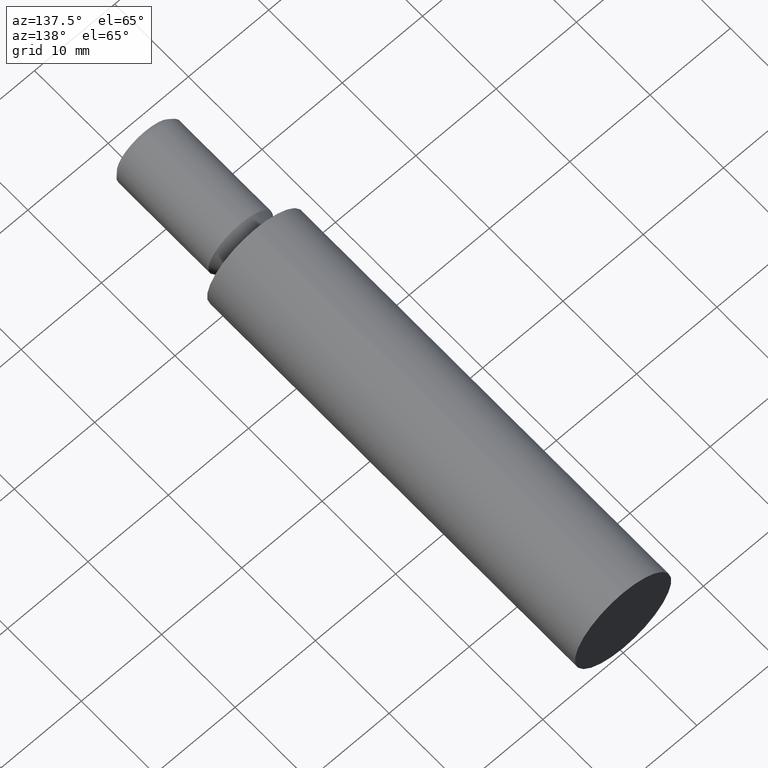
[diagram: clean part render]
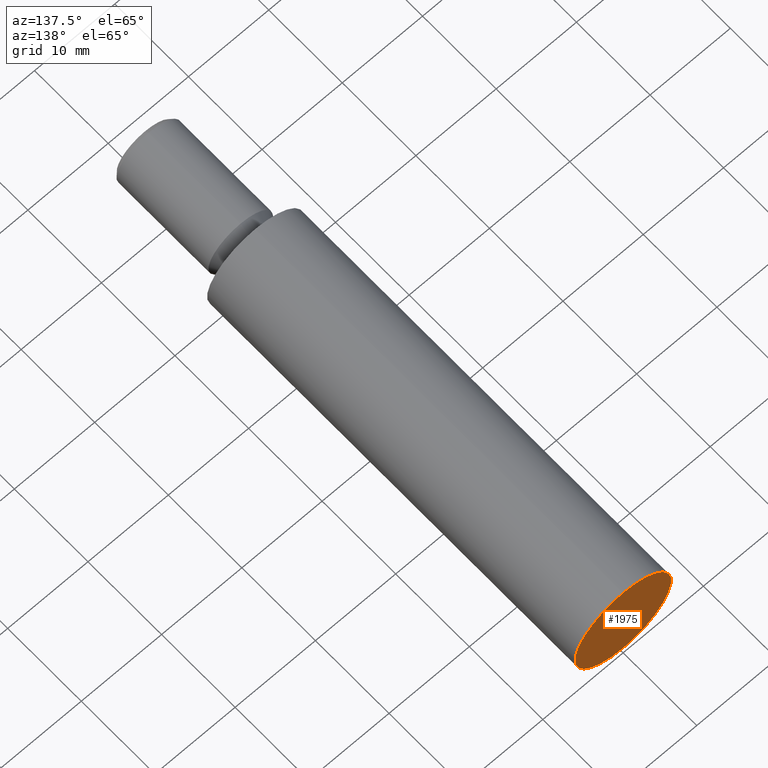
[diagram: same view with one face highlighted and labeled with its STEP entity id]
A machine part, auxiliary view. The second image highlights one B-rep face of the part: STEP entity #1975.
In plain terms, the highlighted planar face has unit normal (0, 1, 0).
Its self-contained STEP definition (entity closure, byte-faithful):
#173 = DIRECTION ( 'NONE',  ( 0.0000000000000000000, 0.0000000000000000000, -1.000000000000000000 ) ) ;
#510 = CARTESIAN_POINT ( 'NONE',  ( 0.0000000000000000000, 50.00000000000000000, 0.0000000000000000000 ) ) ;
#968 = CARTESIAN_POINT ( 'NONE',  ( 0.0000000000000000000, 50.00000000000000000, 0.0000000000000000000 ) ) ;
#1149 = EDGE_LOOP ( 'NONE', ( #1656, #10265 ) ) ;
#1190 = CIRCLE ( 'NONE', #4065, 5.999999999999999100 ) ;
#1462 = DIRECTION ( 'NONE',  ( 0.0000000000000000000, 1.000000000000000000, 0.0000000000000000000 ) ) ;
#1656 = ORIENTED_EDGE ( 'NONE', *, *, #13745, .F. ) ;
#1975 = ADVANCED_FACE ( 'NONE', ( #4818 ), #5007, .T. ) ;
#2035 = CIRCLE ( 'NONE', #6375, 5.999999999999999100 ) ;
#4065 = AXIS2_PLACEMENT_3D ( 'NONE', #968, #13631, #14781 ) ;
#4167 = VERTEX_POINT ( 'NONE', #6294 ) ;
#4818 = FACE_OUTER_BOUND ( 'NONE', #1149, .T. ) ;
#5007 = PLANE ( 'NONE',  #10709 ) ;
#5272 = VERTEX_POINT ( 'NONE', #9574 ) ;
#5888 = DIRECTION ( 'NONE',  ( -0.0000000000000000000, -1.000000000000000000, -0.0000000000000000000 ) ) ;
#6294 = CARTESIAN_POINT ( 'NONE',  ( 0.0000000000000000000, 50.00000000000000000, -5.999999999999999100 ) ) ;
#6375 = AXIS2_PLACEMENT_3D ( 'NONE', #12777, #5888, #173 ) ;
#6887 = EDGE_CURVE ( 'NONE', #5272, #4167, #2035, .T. ) ;
#8414 = DIRECTION ( 'NONE',  ( 0.0000000000000000000, -0.0000000000000000000, 1.000000000000000000 ) ) ;
#9574 = CARTESIAN_POINT ( 'NONE',  ( 7.347880794884123700E-016, 50.00000000000000000, 5.999999999999999100 ) ) ;
#10265 = ORIENTED_EDGE ( 'NONE', *, *, #6887, .F. ) ;
#10709 = AXIS2_PLACEMENT_3D ( 'NONE', #510, #1462, #8414 ) ;
#12777 = CARTESIAN_POINT ( 'NONE',  ( 0.0000000000000000000, 50.00000000000000000, 0.0000000000000000000 ) ) ;
#13631 = DIRECTION ( 'NONE',  ( -0.0000000000000000000, -1.000000000000000000, -0.0000000000000000000 ) ) ;
#13745 = EDGE_CURVE ( 'NONE', #4167, #5272, #1190, .T. ) ;
#14781 = DIRECTION ( 'NONE',  ( 0.0000000000000000000, 0.0000000000000000000, -1.000000000000000000 ) ) ;